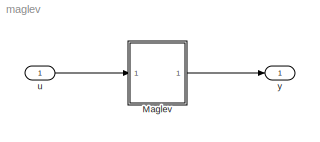
MODEL maglev
KIND model
CONFIG AbsTol = auto
CONFIG FixedStep = auto
CONFIG MaxStep = auto
CONFIG RelTol = 1e-3
CONFIG Solver = ode45
CONFIG SolverMode = Auto
CONFIG StartTime = 0.0
CONFIG StopTime = 10.0
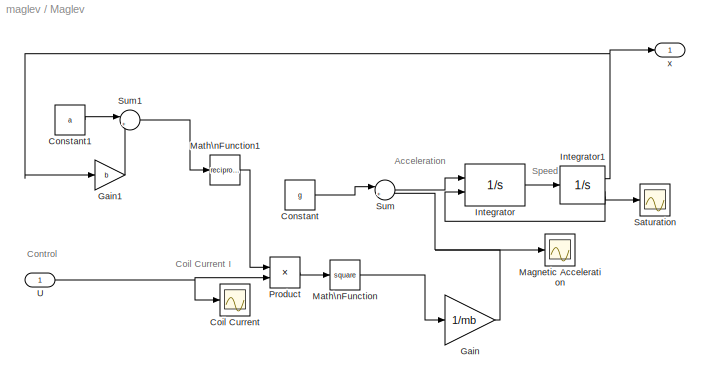
BLOCK [SubSystem] Maglev
  Ports = [1, 1, 0, 0, 0]
  ShowPortLabels = on
BLOCK [Scope] Maglev/Coil Current
  DataFormat = StructureWithTime
  Decimation = 1
  Floating = off
  Grid = on
  LimitMaxRows = on
  MaxRows = 5000
  NumInputPorts = 1
  Ports = [1, 0, 0, 0, 0]
  SampleInput = off
  SampleTime = 0
  SaveName = ScopeData
  SaveToWorkspace = off
  TickLabels = OneTimeTick
  TimeRange = auto
  YMax = 30
  YMin = 0
  ZoomMode = on
BLOCK [Constant] Maglev/Constant
  Value = g
BLOCK [Constant] Maglev/Constant1
  Value = a
BLOCK [Gain] Maglev/Gain
  Gain = 1/mb
  SaturateOnIntegerOverflow = on
BLOCK [Gain] Maglev/Gain1
  Gain = b
  SaturateOnIntegerOverflow = on
BLOCK [Integrator] Maglev/Integrator
  AbsoluteTolerance = auto
  ExternalReset = falling
  InitialCondition = 0
  InitialConditionSource = internal
  LimitOutput = off
  LowerSaturationLimit = -inf
  Ports = [2, 1, 0, 0, 0]
  ShowSaturationPort = off
  ShowStatePort = off
  UpperSaturationLimit = inf
BLOCK [Integrator] Maglev/Integrator1
  AbsoluteTolerance = auto
  ExternalReset = none
  InitialCondition = yl
  InitialConditionSource = internal
  LimitOutput = on
  LowerSaturationLimit = 0
  Ports = [1, 2, 0, 0, 0]
  ShowSaturationPort = on
  ShowStatePort = off
  UpperSaturationLimit = 10
BLOCK [Scope] Maglev/Magnetic Acceleration
  DataFormat = StructureWithTime
  Decimation = 1
  Floating = off
  Grid = on
  LimitMaxRows = on
  MaxRows = 5000
  NumInputPorts = 1
  Ports = [1, 0, 0, 0, 0]
  SampleInput = off
  SampleTime = 0
  SaveName = ScopeData
  SaveToWorkspace = off
  TickLabels = OneTimeTick
  TimeRange = auto
  YMax = 7
  YMin = 0
  ZoomMode = on
BLOCK [Math] Maglev/Math\nFunction
  Operator = square
  OutputSignalType = auto
  Ports = [1, 1, 0, 0, 0]
BLOCK [Math] Maglev/Math\nFunction1
  Operator = reciprocal
  OutputSignalType = auto
  Ports = [1, 1, 0, 0, 0]
BLOCK [Product] Maglev/Product
  Inputs = 2
  Ports = [2, 1, 0, 0, 0]
  SaturateOnIntegerOverflow = on
BLOCK [Scope] Maglev/Saturation
  DataFormat = StructureWithTime
  Decimation = 1
  Floating = off
  Grid = on
  LimitMaxRows = on
  MaxRows = 125000
  NumInputPorts = 1
  Ports = [1, 0, 0, 0, 0]
  SampleInput = off
  SampleTime = 0
  SaveName = ScopeData
  SaveToWorkspace = off
  TickLabels = OneTimeTick
  TimeRange = auto
  YMax = 7
  YMin = 0
  ZoomMode = on
BLOCK [Sum] Maglev/Sum
  IconShape = round
  Inputs = |+-
  Ports = [2, 1, 0, 0, 0]
  SaturateOnIntegerOverflow = on
BLOCK [Sum] Maglev/Sum1
  IconShape = round
  Inputs = |++
  Ports = [2, 1, 0, 0, 0]
  SaturateOnIntegerOverflow = on
BLOCK [Inport] Maglev/U
  DataType = auto
  Interpolate = on
  Port = 1
  PortWidth = -1
  SampleTime = -1
  SignalType = auto
BLOCK [Outport] Maglev/x
  InitialOutput = []
  OutputWhenDisabled = held
  Port = 1
BLOCK [Inport] u
  DataType = auto
  Interpolate = on
  Port = 1
  PortWidth = -1
  SampleTime = -1
  SignalType = auto
BLOCK [Outport] y
  InitialOutput = []
  OutputWhenDisabled = held
  Port = 1
LINE Maglev/Constant1:1 -> Maglev/Sum1:1
LINE Maglev/Constant:1 -> Maglev/Sum:1
LINE Maglev/Gain1:1 -> Maglev/Sum1:2
NET Maglev/Gain:1 -> Maglev/Magnetic Acceleration:1, Maglev/Sum:2
NET Maglev/Integrator1:1 -> Maglev/Gain1:1, Maglev/x:1
NET Maglev/Integrator1:2 -> Maglev/Integrator:2, Maglev/Saturation:1
LINE Maglev/Integrator:1 -> Maglev/Integrator1:1
LINE Maglev/Math\nFunction1:1 -> Maglev/Product:1
LINE Maglev/Math\nFunction:1 -> Maglev/Gain:1
LINE Maglev/Product:1 -> Maglev/Math\nFunction:1
LINE Maglev/Sum1:1 -> Maglev/Math\nFunction1:1
LINE Maglev/Sum:1 -> Maglev/Integrator:1
NET Maglev/U:1 -> Maglev/Coil Current:1, Maglev/Product:2
LINE Maglev:1 -> y:1
LINE u:1 -> Maglev:1
note: NET lines group one-source signal fan-out (src -> all destinations, sorted); 1:1 wires keep LINE
